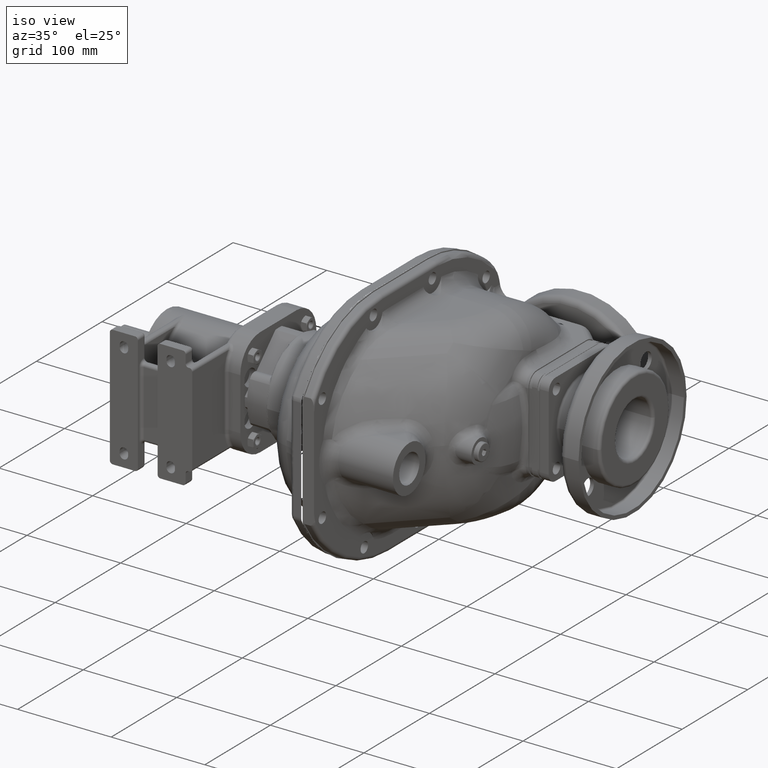
[diagram: clean part render]
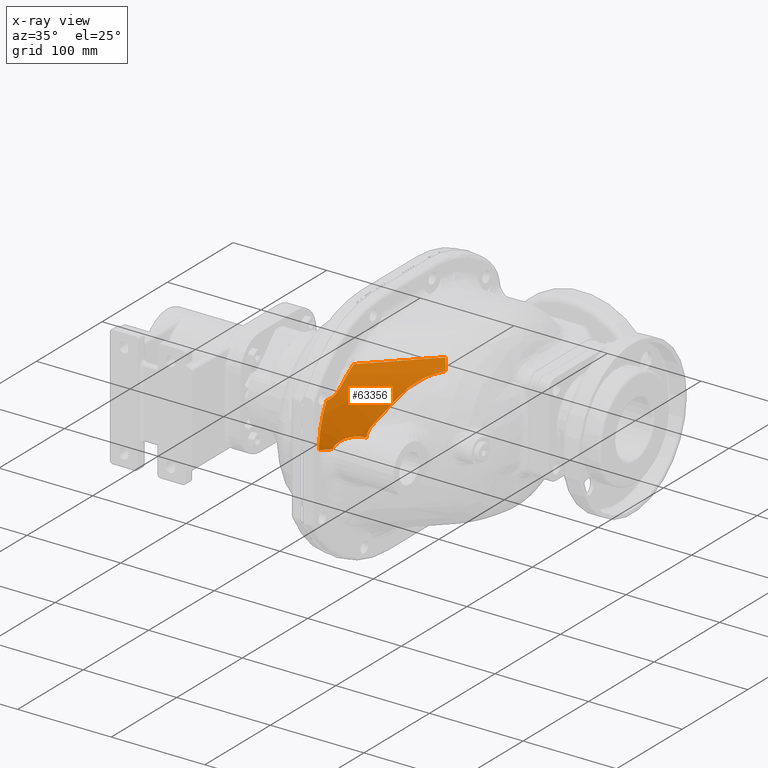
[diagram: x-ray — body ghosted, one internal face saturated and labeled with its STEP entity id]
A machine part, iso view, then the same camera in x-ray: the body is ghosted and one INTERNAL B-rep face — a face not visible from any outside direction — is saturated and labeled: STEP entity #63356.
In plain terms, the highlighted face is a SurfaceOfExtrusion surface.
Its self-contained STEP definition (entity closure, byte-faithful):
#16149=DIRECTION('',(7.071067811865E-1,7.071067811865E-1,-9.471712424016E-14));
#16150=VECTOR('',#16149,1.196526681557E1);
#16151=CARTESIAN_POINT('',(-1.75E1,4.2E1,-4.999999999999E0));
#16152=LINE('',#16151,#16150);
#16153=CARTESIAN_POINT('',(4.856332079021E0,6.5E1,5.375E0));
#16154=CARTESIAN_POINT('',(4.647132933441E0,6.479080085442E1,5.375E0));
#16155=CARTESIAN_POINT('',(4.230892465176E0,6.437350320410E1,5.366465672710E0));
#16156=CARTESIAN_POINT('',(3.613072681223E0,6.375097875980E1,5.328392799902E0));
#16157=CARTESIAN_POINT('',(3.003516972758E0,6.313368750566E1,5.265484839708E0));
#16158=CARTESIAN_POINT('',(2.403678938312E0,6.252321233520E1,5.178345352145E0));
#16159=CARTESIAN_POINT('',(1.813978309148E0,6.192011148620E1,5.067498007766E0));
#16160=CARTESIAN_POINT('',(1.235499573005E0,6.132564223463E1,4.933606391647E0));
#16161=CARTESIAN_POINT('',(6.695954461232E-1,6.074136866482E1,
4.777534826956E0));
#16162=CARTESIAN_POINT('',(1.173176172037E-1,6.016857506771E1,
4.600234159873E0));
#16163=CARTESIAN_POINT('',(-4.212493127684E-1,5.960755868433E1,
4.402400660044E0));
#16164=CARTESIAN_POINT('',(-9.451255326037E-1,5.905955924155E1,
4.185078601688E0));
#16165=CARTESIAN_POINT('',(-1.453553051151E0,5.852560493790E1,
3.949384472293E0));
#16166=CARTESIAN_POINT('',(-1.946754808296E0,5.800569960247E1,
3.696014678325E0));
#16167=CARTESIAN_POINT('',(-2.424135420766E0,5.750070965004E1,
3.426069834702E0));
#16168=CARTESIAN_POINT('',(-2.885170222042E0,5.701143553330E1,
3.140749788390E0));
#16169=CARTESIAN_POINT('',(-3.330291848367E0,5.653765994832E1,
2.840685238462E0));
#16170=CARTESIAN_POINT('',(-3.759229790517E0,5.607990689134E1,
2.526932668473E0));
#16171=CARTESIAN_POINT('',(-4.171697627288E0,5.563871658643E1,
2.200668731066E0));
#16172=CARTESIAN_POINT('',(-4.568285433296E0,5.521368410311E1,
1.862378013075E0));
#16173=CARTESIAN_POINT('',(-4.948911495122E0,5.480511378688E1,
1.513041730761E0));
#16174=CARTESIAN_POINT('',(-5.313401941694E0,5.441340218137E1,
1.153821999061E0));
#16175=CARTESIAN_POINT('',(-5.662394615497E0,5.403806301898E1,
7.850788855460E-1));
#16176=CARTESIAN_POINT('',(-5.996014220245E0,5.367915027128E1,
4.076148964857E-1));
#16177=CARTESIAN_POINT('',(-6.314231231204E0,5.333687329872E1,
2.245643295194E-2));
#16178=CARTESIAN_POINT('',(-6.617372837556E0,5.301104575777E1,
-3.697633833188E-1));
#16179=CARTESIAN_POINT('',(-6.906043121771E0,5.270117287772E1,
-7.688691997484E-1));
#16180=CARTESIAN_POINT('',(-7.180223521843E0,5.240741818292E1,
-1.173899328901E0));
#16181=CARTESIAN_POINT('',(-7.439976641484E0,5.212984401150E1,
-1.583903788770E0));
#16182=CARTESIAN_POINT('',(-7.685993099477E0,5.186783084283E1,
-1.998975514921E0));
#16183=CARTESIAN_POINT('',(-7.918507316252E0,5.162123884539E1,
-2.418598141311E0));
#16184=CARTESIAN_POINT('',(-8.137619641407E0,5.139005905011E1,
-2.842001379739E0));
#16185=CARTESIAN_POINT('',(-8.343432062544E0,5.117426598961E1,
-3.268344492902E0));
#16186=CARTESIAN_POINT('',(-8.536484624151E0,5.097336576207E1,
-3.697741875594E0));
#16187=CARTESIAN_POINT('',(-8.716935118611E0,5.078725795002E1,
-4.129587978493E0));
#16188=CARTESIAN_POINT('',(-8.885127106448E0,5.061564092956E1,
-4.563735572603E0));
#16189=CARTESIAN_POINT('',(-8.989219070081E0,5.051078092992E1,
-4.854433829466E0));
#16190=CARTESIAN_POINT('',(-9.039278696002E0,5.046072130400E1,
-5.000000000001E0));
#16192=CARTESIAN_POINT('',(1.212012632061E1,7.206835722217E1,3.653898753826E0));
#16193=CARTESIAN_POINT('',(1.193579540812E1,7.189338483807E1,3.744478546247E0));
#16194=CARTESIAN_POINT('',(1.156248734190E1,7.153846809865E1,3.919690491185E0));
#16195=CARTESIAN_POINT('',(1.098837528635E1,7.099075795463E1,4.164120752728E0));
#16196=CARTESIAN_POINT('',(1.040241045854E1,7.042966612540E1,4.388606300009E0));
#16197=CARTESIAN_POINT('',(9.805577160860E0,6.985592121270E1,4.592292831977E0));
#16198=CARTESIAN_POINT('',(9.199727982059E0,6.927109761261E1,4.774096534577E0));
#16199=CARTESIAN_POINT('',(8.586804953469E0,6.867688754928E1,4.933110700828E0));
#16200=CARTESIAN_POINT('',(7.967957803687E0,6.807424091620E1,5.068750775186E0));
#16201=CARTESIAN_POINT('',(7.345380430116E0,6.746515140115E1,5.180301842E0));
#16202=CARTESIAN_POINT('',(6.721275867058E0,6.685166707163E1,5.267284928304E0));
#16203=CARTESIAN_POINT('',(6.096834796892E0,6.623487832653E1,5.329506676468E0));
#16204=CARTESIAN_POINT('',(5.474065450537E0,6.561671408886E1,5.366771537288E0));
#16205=CARTESIAN_POINT('',(5.061785376533E0,6.520545329751E1,5.375E0));
#16206=CARTESIAN_POINT('',(4.856332079021E0,6.5E1,5.375E0));
#16208=CARTESIAN_POINT('',(1.212022498360E1,7.206844821836E1,3.653849698384E0));
#16209=CARTESIAN_POINT('',(1.212921897229E1,7.209799525056E1,3.852890255553E0));
#16210=CARTESIAN_POINT('',(1.215113339031E1,7.216239251095E1,4.250243361512E0));
#16211=CARTESIAN_POINT('',(1.219606030094E1,7.227501963353E1,4.844408819183E0));
#16212=CARTESIAN_POINT('',(1.225306066141E1,7.240355771294E1,5.435556002064E0));
#16213=CARTESIAN_POINT('',(1.232216719845E1,7.254786969888E1,6.022936324745E0));
#16214=CARTESIAN_POINT('',(1.240335076086E1,7.270773213341E1,6.605666299908E0));
#16215=CARTESIAN_POINT('',(1.249663457227E1,7.288304348808E1,7.183531079994E0));
#16216=CARTESIAN_POINT('',(1.260215494363E1,7.307381829134E1,7.756348838633E0));
#16217=CARTESIAN_POINT('',(1.272000492667E1,7.328001574869E1,8.323888198227E0));
#16218=CARTESIAN_POINT('',(1.285029194314E1,7.350160004263E1,8.885889577951E0));
#16219=CARTESIAN_POINT('',(1.299311950170E1,7.373851072016E1,9.442005669164E0));
#16220=CARTESIAN_POINT('',(1.314856400021E1,7.399064130988E1,9.991827868467E0));
#16221=CARTESIAN_POINT('',(1.331676348859E1,7.425793558109E1,1.053493779159E1));
#16222=CARTESIAN_POINT('',(1.349786549550E1,7.454035771600E1,1.107102242181E1));
#16223=CARTESIAN_POINT('',(1.369199988996E1,7.483784121574E1,1.159973454910E1));
#16224=CARTESIAN_POINT('',(1.389930615854E1,7.515031110755E1,1.212067302198E1));
#16225=CARTESIAN_POINT('',(1.411990457964E1,7.547764998439E1,1.263336848157E1));
#16226=CARTESIAN_POINT('',(1.435408948101E1,7.581997445994E1,1.313767420817E1));
#16227=CARTESIAN_POINT('',(1.460227517212E1,7.617755232731E1,1.363358454017E1));
#16228=CARTESIAN_POINT('',(1.486464524780E1,7.655032773604E1,1.412067856842E1));
#16229=CARTESIAN_POINT('',(1.514117561243E1,7.693792841208E1,1.459810589225E1));
#16230=CARTESIAN_POINT('',(1.543191502085E1,7.734006354885E1,1.506514716762E1));
#16231=CARTESIAN_POINT('',(1.563507721122E1,7.761743861552E1,1.536891868808E1));
#16232=CARTESIAN_POINT('',(1.573908604775E1,7.775849615001E1,1.551889332015E1));
#16234=CARTESIAN_POINT('',(1.573908604781E1,7.775849615009E1,1.551889332024E1));
#16235=CARTESIAN_POINT('',(1.631885891386E1,7.854480341118E1,1.635484542570E1));
#16236=CARTESIAN_POINT('',(1.743515323709E1,8.009424639286E1,1.800168610123E1));
#16237=CARTESIAN_POINT('',(1.898321207889E1,8.234621433025E1,2.039432743610E1));
#16238=CARTESIAN_POINT('',(2.040931358767E1,8.452486150033E1,2.270853818962E1));
#16239=CARTESIAN_POINT('',(2.171767695479E1,8.662887748367E1,2.494319979171E1));
#16240=CARTESIAN_POINT('',(2.291176954874E1,8.865565049589E1,2.709579777668E1));
#16241=CARTESIAN_POINT('',(2.399595821358E1,9.060382676657E1,2.916508629001E1));
#16242=CARTESIAN_POINT('',(2.497532332222E1,9.247323199456E1,3.115101334905E1));
#16243=CARTESIAN_POINT('',(2.556269091154E1,9.366899874257E1,3.242159152044E1));
#16244=CARTESIAN_POINT('',(2.584058750677E1,9.425382736299E1,3.304308816625E1));
#16246=CARTESIAN_POINT('',(2.584058750683E1,9.425382736311E1,3.304308816639E1));
#16247=CARTESIAN_POINT('',(2.602089588826E1,9.463327510697E1,3.344632459532E1));
#16248=CARTESIAN_POINT('',(2.638527624948E1,9.539770131214E1,3.424010214294E1));
#16249=CARTESIAN_POINT('',(2.694350718129E1,9.656007171237E1,3.539339180185E1));
#16250=CARTESIAN_POINT('',(2.751380310164E1,9.773736251136E1,3.650985891890E1));
#16251=CARTESIAN_POINT('',(2.809658769551E1,9.892883605534E1,3.759011105476E1));
#16252=CARTESIAN_POINT('',(2.869256247538E1,1.001339349618E2,3.863448642845E1));
#16253=CARTESIAN_POINT('',(2.930281908330E1,1.013521425531E2,3.964302106253E1));
#16254=CARTESIAN_POINT('',(2.992803174914E1,1.025829094895E2,4.061637267355E1));
#16255=CARTESIAN_POINT('',(3.056900519093E1,1.038258628493E2,4.155516049692E1));
#16256=CARTESIAN_POINT('',(3.122655843647E1,1.050806243952E2,4.245989014228E1));
#16257=CARTESIAN_POINT('',(3.190123625509E1,1.063462547993E2,4.333058180995E1));
#16258=CARTESIAN_POINT('',(3.259363930300E1,1.076218604178E2,4.416723058568E1));
#16259=CARTESIAN_POINT('',(3.330429421709E1,1.089065493957E2,4.496992416239E1));
#16260=CARTESIAN_POINT('',(3.403363721676E1,1.101994500636E2,4.573887573755E1));
#16261=CARTESIAN_POINT('',(3.478212585279E1,1.114996757538E2,4.647421683971E1));
#16262=CARTESIAN_POINT('',(3.555050477836E1,1.128068285554E2,4.717631105979E1));
#16263=CARTESIAN_POINT('',(3.633961825433E1,1.141205824253E2,4.784543603959E1));
#16264=CARTESIAN_POINT('',(3.715023925826E1,1.154405527838E2,4.848184415421E1));
#16265=CARTESIAN_POINT('',(3.798296345440E1,1.167662847890E2,4.908587459044E1));
#16266=CARTESIAN_POINT('',(3.883837266845E1,1.180972344529E2,4.965772686978E1));
#16267=CARTESIAN_POINT('',(3.971741963930E1,1.194334029063E2,5.019776343363E1));
#16268=CARTESIAN_POINT('',(4.062135269907E1,1.207751473914E2,5.070635914064E1));
#16269=CARTESIAN_POINT('',(4.155147401972E1,1.221227664657E2,5.118370313473E1));
#16270=CARTESIAN_POINT('',(4.250852048894E1,1.234759837972E2,5.162992511140E1));
#16271=CARTESIAN_POINT('',(4.349316345174E1,1.248344310128E2,5.204507607705E1));
#16272=CARTESIAN_POINT('',(4.450605344237E1,1.261976936773E2,5.242913002495E1));
#16273=CARTESIAN_POINT('',(4.554748354379E1,1.275648980249E2,5.278190071646E1));
#16274=CARTESIAN_POINT('',(4.661764120734E1,1.289350530053E2,5.310314128133E1));
#16275=CARTESIAN_POINT('',(4.771697560681E1,1.303076882364E2,5.339282496588E1));
#16276=CARTESIAN_POINT('',(4.884663205003E1,1.316833660426E2,5.365120670491E1));
#16277=CARTESIAN_POINT('',(5.000767635705E1,1.330624676302E2,5.387835169973E1));
#16278=CARTESIAN_POINT('',(5.120107251185E1,1.344452235846E2,5.407419526624E1));
#16279=CARTESIAN_POINT('',(5.201918174203E1,1.353700099670E2,5.418385038018E1));
#16280=CARTESIAN_POINT('',(5.243389624913E1,1.358330115878E2,5.423337347794E1));
#16282=CARTESIAN_POINT('',(4.749912705590E1,1.421651622857E2,6.386123659710E1));
#16283=CARTESIAN_POINT('',(4.768791402483E1,1.419673344934E2,6.358770366220E1));
#16284=CARTESIAN_POINT('',(4.806552190979E1,1.415621325026E2,6.302361992835E1));
#16285=CARTESIAN_POINT('',(4.862987747082E1,1.409245444537E2,6.212372234252E1));
#16286=CARTESIAN_POINT('',(4.919512778312E1,1.402641321813E2,6.116948289140E1));
#16287=CARTESIAN_POINT('',(4.975385711653E1,1.395768389279E2,6.015992531888E1));
#16288=CARTESIAN_POINT('',(5.030807500774E1,1.388676945881E2,5.909380092489E1));
#16289=CARTESIAN_POINT('',(5.085423514315E1,1.381365295508E2,5.797014301616E1));
#16290=CARTESIAN_POINT('',(5.139176228646E1,1.373860704206E2,5.678798684119E1));
#16291=CARTESIAN_POINT('',(5.191958063438E1,1.366179902108E2,5.554565231308E1));
#16292=CARTESIAN_POINT('',(5.226393041275E1,1.360961830832E2,5.467772572209E1));
#16293=CARTESIAN_POINT('',(5.243389624913E1,1.358330115878E2,5.423337347794E1));
#16295=CARTESIAN_POINT('',(-1.009853182161E1,8.458505158557E1,
6.387364855002E1));
#16296=CARTESIAN_POINT('',(-1.012832413333E1,8.405882305830E1,
6.352259909726E1));
#16297=CARTESIAN_POINT('',(-1.018930346836E1,8.301704063629E1,
6.281220544677E1));
#16298=CARTESIAN_POINT('',(-1.028589506017E1,8.148536559672E1,
6.172294342430E1));
#16299=CARTESIAN_POINT('',(-1.038539882940E1,7.998885895719E1,
6.061310587049E1));
#16300=CARTESIAN_POINT('',(-1.048702464824E1,7.852979484009E1,
5.948554698393E1));
#16301=CARTESIAN_POINT('',(-1.058890158922E1,7.711132941682E1,
5.834326555452E1));
#16302=CARTESIAN_POINT('',(-1.069050467639E1,7.572342769274E1,
5.717853077590E1));
#16303=CARTESIAN_POINT('',(-1.079268127158E1,7.435530634579E1,
5.598231805195E1));
#16304=CARTESIAN_POINT('',(-1.089447205137E1,7.301009291661E1,
5.475604818074E1));
#16305=CARTESIAN_POINT('',(-1.099751713524E1,7.169033775005E1,
5.350368615578E1));
#16306=CARTESIAN_POINT('',(-1.110148048521E1,7.039870399790E1,
5.222813466149E1));
#16307=CARTESIAN_POINT('',(-1.120504838743E1,6.913811424835E1,
5.093173457755E1));
#16308=CARTESIAN_POINT('',(-1.127308575064E1,6.832089212601E1,
5.005609268336E1));
#16309=CARTESIAN_POINT('',(-1.130677001382E1,6.791797648805E1,
4.961539101257E1));
#16311=CARTESIAN_POINT('',(-1.130677001382E1,6.791797648804E1,
4.961539101256E1));
#16312=CARTESIAN_POINT('',(-1.132739408111E1,6.767156860459E1,
4.934590059165E1));
#16313=CARTESIAN_POINT('',(-1.137776640286E1,6.718071871387E1,
4.881321324740E1));
#16314=CARTESIAN_POINT('',(-1.148035853632E1,6.644921918572E1,
4.803337909968E1));
#16315=CARTESIAN_POINT('',(-1.160792951393E1,6.572502391096E1,
4.727541365635E1));
#16316=CARTESIAN_POINT('',(-1.175932280349E1,6.500915988916E1,
4.654129768558E1));
#16317=CARTESIAN_POINT('',(-1.193234618173E1,6.430424206979E1,
4.583373531316E1));
#16318=CARTESIAN_POINT('',(-1.212476568673E1,6.361485054889E1,
4.515816583382E1));
#16319=CARTESIAN_POINT('',(-1.233360635804E1,6.294378220350E1,
4.451677406217E1));
#16320=CARTESIAN_POINT('',(-1.255706597440E1,6.229247631689E1,
4.391142172173E1));
#16321=CARTESIAN_POINT('',(-1.279222575201E1,6.166317097722E1,
4.334343951162E1));
#16322=CARTESIAN_POINT('',(-1.303683717831E1,6.105745900899E1,
4.281407543172E1));
#16323=CARTESIAN_POINT('',(-1.328863757484E1,6.047634214304E1,
4.232354404768E1));
#16324=CARTESIAN_POINT('',(-1.354523014164E1,5.992065692493E1,
4.187140317681E1));
#16325=CARTESIAN_POINT('',(-1.380511001389E1,5.939071575655E1,
4.145756520655E1));
#16326=CARTESIAN_POINT('',(-1.406591200883E1,5.888678349846E1,
4.108033499458E1));
#16327=CARTESIAN_POINT('',(-1.432674774474E1,5.840852645555E1,
4.073915603444E1));
#16328=CARTESIAN_POINT('',(-1.458568041620E1,5.795569437616E1,
4.043176031629E1));
#16329=CARTESIAN_POINT('',(-1.484207168267E1,5.752760256982E1,
4.015704162672E1));
#16330=CARTESIAN_POINT('',(-1.509465652387E1,5.712357671999E1,
3.991274046390E1));
#16331=CARTESIAN_POINT('',(-1.534265301619E1,5.674305139334E1,
3.969738396745E1));
#16332=CARTESIAN_POINT('',(-1.558524065102E1,5.638533814951E1,
3.950910590962E1));
#16333=CARTESIAN_POINT('',(-1.582200627247E1,5.604925198112E1,
3.934576602310E1));
#16334=CARTESIAN_POINT('',(-1.605284774491E1,5.573358512129E1,
3.920558968498E1));
#16335=CARTESIAN_POINT('',(-1.627747985105E1,5.543724494545E1,
3.908660062740E1));
#16336=CARTESIAN_POINT('',(-1.649598512304E1,5.515899633205E1,
3.898711981357E1));
#16337=CARTESIAN_POINT('',(-1.670867537574E1,5.489744517049E1,
3.890552500374E1));
#16338=CARTESIAN_POINT('',(-1.691560685060E1,5.465144749159E1,
3.884013377194E1));
#16339=CARTESIAN_POINT('',(-1.711673738017E1,5.442052199722E1,
3.879016934664E1));
#16340=CARTESIAN_POINT('',(-1.731172056596E1,5.420389774075E1,
3.875382964347E1));
#16341=CARTESIAN_POINT('',(-1.743796174730E1,5.406845277404E1,
3.873835786499E1));
#16342=CARTESIAN_POINT('',(-1.750000000048E1,5.400293857307E1,
3.873251610801E1));
#16344=CARTESIAN_POINT('',(-1.75E1,4.2E1,-4.999999999999E0));
#16345=CARTESIAN_POINT('',(-1.75E1,4.2E1,-4.815744224512E0));
#16346=CARTESIAN_POINT('',(-1.750000287899E1,4.200122711693E1,
-4.447232858350E0));
#16347=CARTESIAN_POINT('',(-1.750000714033E1,4.200674908812E1,
-3.894489182581E0));
#16348=CARTESIAN_POINT('',(-1.750000426131E1,4.201288438352E1,
-3.526028721115E0));
#16349=CARTESIAN_POINT('',(-1.75E1,4.201656545039E1,-3.341811123400E0));
#16351=CARTESIAN_POINT('',(-1.75E1,4.201656545039E1,-3.341811123400E0));
#16352=CARTESIAN_POINT('',(-1.749998673284E1,4.202802607934E1,
-2.768268286631E0));
#16353=CARTESIAN_POINT('',(-1.749967858541E1,4.206298321337E1,
-1.618661694236E0));
#16354=CARTESIAN_POINT('',(-1.750000218575E1,4.212181296065E1,
-4.644873622633E-1));
#16355=CARTESIAN_POINT('',(-1.749971582054E1,4.215749626454E1,
1.135976675757E-1));
#16397=CARTESIAN_POINT('',(-1.75E1,4.215739671118E1,1.136039534014E-1));
#16399=CARTESIAN_POINT('',(-1.75E1,4.215739671118E1,1.136039534014E-1));
#16400=CARTESIAN_POINT('',(-1.75E1,4.219474281259E1,7.235217302385E-1));
#16401=CARTESIAN_POINT('',(-1.75E1,4.228213297265E1,1.944895142387E0));
#16402=CARTESIAN_POINT('',(-1.75E1,4.245491578889E1,3.781981135033E0));
#16403=CARTESIAN_POINT('',(-1.75E1,4.266789627423E1,5.622287948804E0));
#16404=CARTESIAN_POINT('',(-1.75E1,4.292156899343E1,7.464117755706E0));
#16405=CARTESIAN_POINT('',(-1.75E1,4.321575141680E1,9.305424666366E0));
#16406=CARTESIAN_POINT('',(-1.75E1,4.355042007475E1,1.114469370058E1));
#16407=CARTESIAN_POINT('',(-1.75E1,4.392531120561E1,1.297968999784E1));
#16408=CARTESIAN_POINT('',(-1.75E1,4.434019118320E1,1.480873634681E1));
#16409=CARTESIAN_POINT('',(-1.75E1,4.479467810309E1,1.662980592682E1));
#16410=CARTESIAN_POINT('',(-1.75E1,4.528828764098E1,1.844085521198E1));
#16411=CARTESIAN_POINT('',(-1.75E1,4.582053545712E1,2.024014020259E1));
#16412=CARTESIAN_POINT('',(-1.75E1,4.639073473999E1,2.202551721547E1));
#16413=CARTESIAN_POINT('',(-1.75E1,4.699820928119E1,2.379519394512E1));
#16414=CARTESIAN_POINT('',(-1.75E1,4.764219168621E1,2.554733239697E1));
#16415=CARTESIAN_POINT('',(-1.75E1,4.832170809448E1,2.727982505708E1));
#16416=CARTESIAN_POINT('',(-1.75E1,4.903602490985E1,2.899139329341E1));
#16417=CARTESIAN_POINT('',(-1.75E1,4.978403056130E1,3.068002535913E1));
#16418=CARTESIAN_POINT('',(-1.75E1,5.056486741876E1,3.234449491233E1));
#16419=CARTESIAN_POINT('',(-1.75E1,5.137715430065E1,3.398262240545E1));
#16420=CARTESIAN_POINT('',(-1.75E1,5.221947349878E1,3.559250438063E1));
#16421=CARTESIAN_POINT('',(-1.75E1,5.309234762955E1,3.717598296636E1));
#16422=CARTESIAN_POINT('',(-1.75E1,5.369589478332E1,3.821633661472E1));
#16423=CARTESIAN_POINT('',(-1.75E1,5.400293857141E1,3.873251610443E1));
#16425=CARTESIAN_POINT('',(-1.750000000048E1,5.400293857307E1,
3.873251610801E1));
#16584=CARTESIAN_POINT('',(-1.009743273659E1,8.458395253693E1,
6.387520286378E1));
#16585=CARTESIAN_POINT('',(-3.697991190703E0,9.098339408281E1,
6.387520286378E1));
#16586=CARTESIAN_POINT('',(9.101580248934E0,1.037806860132E2,6.387359100735E1));
#16587=CARTESIAN_POINT('',(2.829274994538E1,1.229821132688E2,6.388084419697E1));
#16588=CARTESIAN_POINT('',(4.110190954857E1,1.357661988902E2,6.386311421441E1));
#16589=CARTESIAN_POINT('',(4.75E1,1.421642893416E2,6.386311421441E1));
#19960=CARTESIAN_POINT('',(-9.039278696002E0,5.046072130400E1,
-5.000000000001E0));
#20109=CARTESIAN_POINT('',(-1.75E1,4.2E1,-4.999999999999E0));
#42203=CARTESIAN_POINT('',(4.856332079021E0,6.5E1,5.375E0));
#42204=VERTEX_POINT('',#42203);
#42755=CARTESIAN_POINT('',(4.749978176396E1,1.421645075777E2,6.386264481011E1));
#42757=VERTEX_POINT('',#42755);
#42931=VERTEX_POINT('',#16234);
#42932=VERTEX_POINT('',#16244);
#42933=VERTEX_POINT('',#16280);
#42953=VERTEX_POINT('',#16584);
#42955=VERTEX_POINT('',#16309);
#43001=VERTEX_POINT('',#19960);
#43002=VERTEX_POINT('',#16192);
#43095=VERTEX_POINT('',#20109);
#43096=VERTEX_POINT('',#16349);
#43114=VERTEX_POINT('',#16425);
#43327=VERTEX_POINT('',#16397);
#63319=CARTESIAN_POINT('',(-4.267459483757E1,5.303245921384E1,
6.458550141117E1));
#63320=CARTESIAN_POINT('',(-4.063528964308E1,5.099315401935E1,
6.179549241040E1));
#63321=CARTESIAN_POINT('',(-3.595266901100E1,4.631053338727E1,
5.405426807360E1));
#63322=CARTESIAN_POINT('',(-2.762035006241E1,3.797821443867E1,
3.245345640847E1));
#63323=CARTESIAN_POINT('',(-2.451059097554E1,3.486845535181E1,
9.535690816867E0));
#63324=CARTESIAN_POINT('',(-2.457286698005E1,3.493073135631E1,
-5.891383493045E0));
#63325=CARTESIAN_POINT('',(-2.457645496149E1,3.493431933776E1,
-6.337016687486E0));
#63327=DIRECTION('',(7.071067811865E-1,7.071067811865E-1,0.E0));
#63328=VECTOR('',#63327,1.E0);
#63329=SURFACE_OF_LINEAR_EXTRUSION('',#63326,#63328);
#63331=ORIENTED_EDGE('',*,*,#63330,.F.);
#63333=ORIENTED_EDGE('',*,*,#63332,.T.);
#63334=ORIENTED_EDGE('',*,*,#63311,.F.);
#63335=ORIENTED_EDGE('',*,*,#63297,.F.);
#63337=ORIENTED_EDGE('',*,*,#63336,.T.);
#63339=ORIENTED_EDGE('',*,*,#63338,.T.);
#63341=ORIENTED_EDGE('',*,*,#63340,.T.);
#63343=ORIENTED_EDGE('',*,*,#63342,.F.);
#63345=ORIENTED_EDGE('',*,*,#63344,.F.);
#63347=ORIENTED_EDGE('',*,*,#63346,.T.);
#63349=ORIENTED_EDGE('',*,*,#63348,.T.);
#63351=ORIENTED_EDGE('',*,*,#63350,.F.);
#63353=ORIENTED_EDGE('',*,*,#63352,.F.);
#63354=EDGE_LOOP('',(#63331,#63333,#63334,#63335,#63337,#63339,#63341,#63343,
#63345,#63347,#63349,#63351,#63353));
#63355=FACE_OUTER_BOUND('',#63354,.F.);
#63356=ADVANCED_FACE('',(#63355),#63329,.F.);
#16191=B_SPLINE_CURVE_WITH_KNOTS('',3,(#16153,#16154,#16155,#16156,#16157,
#16158,#16159,#16160,#16161,#16162,#16163,#16164,#16165,#16166,#16167,#16168,
#16169,#16170,#16171,#16172,#16173,#16174,#16175,#16176,#16177,#16178,#16179,
#16180,#16181,#16182,#16183,#16184,#16185,#16186,#16187,#16188,#16189,#16190),
.UNSPECIFIED.,.F.,.F.,(4,1,1,1,1,1,1,1,1,1,1,1,1,1,1,1,1,1,1,1,1,1,1,1,1,1,1,1,
1,1,1,1,1,1,1,4),(0.E0,2.857142857143E-2,5.714285714286E-2,8.571428571429E-2,
1.142857142857E-1,1.428571428571E-1,1.714285714286E-1,2.E-1,2.285714285714E-1,
2.571428571429E-1,2.857142857143E-1,3.142857142857E-1,3.428571428571E-1,
3.714285714286E-1,4.E-1,4.285714285714E-1,4.571428571429E-1,4.857142857143E-1,
5.142857142857E-1,5.428571428571E-1,5.714285714286E-1,6.E-1,6.285714285714E-1,
6.571428571429E-1,6.857142857143E-1,7.142857142857E-1,7.428571428571E-1,
7.714285714286E-1,8.E-1,8.285714285714E-1,8.571428571429E-1,8.857142857143E-1,
9.142857142857E-1,9.428571428571E-1,9.714285714286E-1,1.E0),.UNSPECIFIED.);
#16207=B_SPLINE_CURVE_WITH_KNOTS('',3,(#16192,#16193,#16194,#16195,#16196,
#16197,#16198,#16199,#16200,#16201,#16202,#16203,#16204,#16205,#16206),
.UNSPECIFIED.,.F.,.F.,(4,1,1,1,1,1,1,1,1,1,1,1,4),(0.E0,8.333333333333E-2,
1.666666666667E-1,2.5E-1,3.333333333333E-1,4.166666666667E-1,5.E-1,
5.833333333333E-1,6.666666666667E-1,7.5E-1,8.333333333333E-1,9.166666666667E-1,
1.E0),.UNSPECIFIED.);
#16233=B_SPLINE_CURVE_WITH_KNOTS('',3,(#16208,#16209,#16210,#16211,#16212,
#16213,#16214,#16215,#16216,#16217,#16218,#16219,#16220,#16221,#16222,#16223,
#16224,#16225,#16226,#16227,#16228,#16229,#16230,#16231,#16232),.UNSPECIFIED.,
.F.,.F.,(4,1,1,1,1,1,1,1,1,1,1,1,1,1,1,1,1,1,1,1,1,1,4),(0.E0,4.545454545455E-2,
9.090909090909E-2,1.363636363636E-1,1.818181818182E-1,2.272727272727E-1,
2.727272727273E-1,3.181818181818E-1,3.636363636364E-1,4.090909090909E-1,
4.545454545455E-1,5.E-1,5.454545454545E-1,5.909090909091E-1,6.363636363636E-1,
6.818181818182E-1,7.272727272727E-1,7.727272727273E-1,8.181818181818E-1,
8.636363636364E-1,9.090909090909E-1,9.545454545455E-1,1.E0),.UNSPECIFIED.);
#16245=B_SPLINE_CURVE_WITH_KNOTS('',3,(#16234,#16235,#16236,#16237,#16238,
#16239,#16240,#16241,#16242,#16243,#16244),.UNSPECIFIED.,.F.,.F.,(4,1,1,1,1,1,1,
1,4),(0.E0,1.25E-1,2.5E-1,3.75E-1,5.E-1,6.25E-1,7.5E-1,8.75E-1,1.E0),
.UNSPECIFIED.);
#16281=B_SPLINE_CURVE_WITH_KNOTS('',3,(#16246,#16247,#16248,#16249,#16250,
#16251,#16252,#16253,#16254,#16255,#16256,#16257,#16258,#16259,#16260,#16261,
#16262,#16263,#16264,#16265,#16266,#16267,#16268,#16269,#16270,#16271,#16272,
#16273,#16274,#16275,#16276,#16277,#16278,#16279,#16280),.UNSPECIFIED.,.F.,.F.,(
4,1,1,1,1,1,1,1,1,1,1,1,1,1,1,1,1,1,1,1,1,1,1,1,1,1,1,1,1,1,1,1,4),(0.E0,
3.125E-2,6.25E-2,9.375E-2,1.25E-1,1.5625E-1,1.875E-1,2.1875E-1,2.5E-1,2.8125E-1,
3.125E-1,3.4375E-1,3.75E-1,4.0625E-1,4.375E-1,4.6875E-1,5.E-1,5.3125E-1,
5.625E-1,5.9375E-1,6.25E-1,6.5625E-1,6.875E-1,7.1875E-1,7.5E-1,7.8125E-1,
8.125E-1,8.4375E-1,8.75E-1,9.0625E-1,9.375E-1,9.6875E-1,1.E0),.UNSPECIFIED.);
#16294=B_SPLINE_CURVE_WITH_KNOTS('',3,(#16282,#16283,#16284,#16285,#16286,
#16287,#16288,#16289,#16290,#16291,#16292,#16293),.UNSPECIFIED.,.F.,.F.,(4,1,1,
1,1,1,1,1,1,4),(0.E0,1.111111111111E-1,2.222222222222E-1,3.333333333333E-1,
4.444444444444E-1,5.555555555556E-1,6.666666666667E-1,7.777777777778E-1,
8.888888888889E-1,1.E0),.UNSPECIFIED.);
#16310=B_SPLINE_CURVE_WITH_KNOTS('',3,(#16295,#16296,#16297,#16298,#16299,
#16300,#16301,#16302,#16303,#16304,#16305,#16306,#16307,#16308,#16309),
.UNSPECIFIED.,.F.,.F.,(4,1,1,1,1,1,1,1,1,1,1,1,4),(0.E0,8.333333333333E-2,
1.666666666667E-1,2.5E-1,3.333333333333E-1,4.166666666667E-1,5.E-1,
5.833333333333E-1,6.666666666667E-1,7.5E-1,8.333333333333E-1,9.166666666667E-1,
1.E0),.UNSPECIFIED.);
#16343=B_SPLINE_CURVE_WITH_KNOTS('',3,(#16311,#16312,#16313,#16314,#16315,
#16316,#16317,#16318,#16319,#16320,#16321,#16322,#16323,#16324,#16325,#16326,
#16327,#16328,#16329,#16330,#16331,#16332,#16333,#16334,#16335,#16336,#16337,
#16338,#16339,#16340,#16341,#16342),.UNSPECIFIED.,.F.,.F.,(4,1,1,1,1,1,1,1,1,1,
1,1,1,1,1,1,1,1,1,1,1,1,1,1,1,1,1,1,1,4),(0.E0,3.448275862069E-2,
6.896551724138E-2,1.034482758621E-1,1.379310344828E-1,1.724137931034E-1,
2.068965517241E-1,2.413793103448E-1,2.758620689655E-1,3.103448275862E-1,
3.448275862069E-1,3.793103448276E-1,4.137931034483E-1,4.482758620690E-1,
4.827586206897E-1,5.172413793103E-1,5.517241379310E-1,5.862068965517E-1,
6.206896551724E-1,6.551724137931E-1,6.896551724138E-1,7.241379310345E-1,
7.586206896552E-1,7.931034482759E-1,8.275862068966E-1,8.620689655172E-1,
8.965517241379E-1,9.310344827586E-1,9.655172413793E-1,1.E0),.UNSPECIFIED.);
#16350=B_SPLINE_CURVE_WITH_KNOTS('',3,(#16344,#16345,#16346,#16347,#16348,
#16349),.UNSPECIFIED.,.F.,.F.,(4,1,1,4),(0.E0,3.333333333333E-1,
6.666666666667E-1,1.E0),.UNSPECIFIED.);
#16356=B_SPLINE_CURVE_WITH_KNOTS('',3,(#16351,#16352,#16353,#16354,#16355),
.UNSPECIFIED.,.F.,.F.,(4,1,4),(0.E0,5.E-1,1.E0),.UNSPECIFIED.);
#16424=B_SPLINE_CURVE_WITH_KNOTS('',3,(#16399,#16400,#16401,#16402,#16403,
#16404,#16405,#16406,#16407,#16408,#16409,#16410,#16411,#16412,#16413,#16414,
#16415,#16416,#16417,#16418,#16419,#16420,#16421,#16422,#16423),.UNSPECIFIED.,
.F.,.F.,(4,1,1,1,1,1,1,1,1,1,1,1,1,1,1,1,1,1,1,1,1,1,4),(0.E0,4.545454545455E-2,
9.090909090909E-2,1.363636363636E-1,1.818181818182E-1,2.272727272727E-1,
2.727272727273E-1,3.181818181818E-1,3.636363636364E-1,4.090909090909E-1,
4.545454545455E-1,5.E-1,5.454545454545E-1,5.909090909091E-1,6.363636363636E-1,
6.818181818182E-1,7.272727272727E-1,7.727272727273E-1,8.181818181818E-1,
8.636363636364E-1,9.090909090909E-1,9.545454545455E-1,1.E0),.UNSPECIFIED.);
#16590=B_SPLINE_CURVE_WITH_KNOTS('',3,(#16584,#16585,#16586,#16587,#16588,
#16589),.UNSPECIFIED.,.F.,.F.,(4,1,1,4),(0.E0,3.333333333333E-1,
6.666666666667E-1,1.E0),.UNSPECIFIED.);
#63297=EDGE_CURVE('',#43002,#42204,#16207,.T.);
#63311=EDGE_CURVE('',#42204,#43001,#16191,.T.);
#63326=B_SPLINE_CURVE_WITH_KNOTS('',3,(#63319,#63320,#63321,#63322,#63323,
#63324,#63325),.UNSPECIFIED.,.F.,.F.,(4,1,1,1,4),(0.E0,1.882817866581E-1,
4.535925788280E-1,9.842141631678E-1,1.E0),.UNSPECIFIED.);
#63330=EDGE_CURVE('',#43095,#43096,#16350,.T.);
#63332=EDGE_CURVE('',#43095,#43001,#16152,.T.);
#63336=EDGE_CURVE('',#43002,#42931,#16233,.T.);
#63338=EDGE_CURVE('',#42931,#42932,#16245,.T.);
#63340=EDGE_CURVE('',#42932,#42933,#16281,.T.);
#63342=EDGE_CURVE('',#42757,#42933,#16294,.T.);
#63344=EDGE_CURVE('',#42953,#42757,#16590,.T.);
#63346=EDGE_CURVE('',#42953,#42955,#16310,.T.);
#63348=EDGE_CURVE('',#42955,#43114,#16343,.T.);
#63350=EDGE_CURVE('',#43327,#43114,#16424,.T.);
#63352=EDGE_CURVE('',#43096,#43327,#16356,.T.);